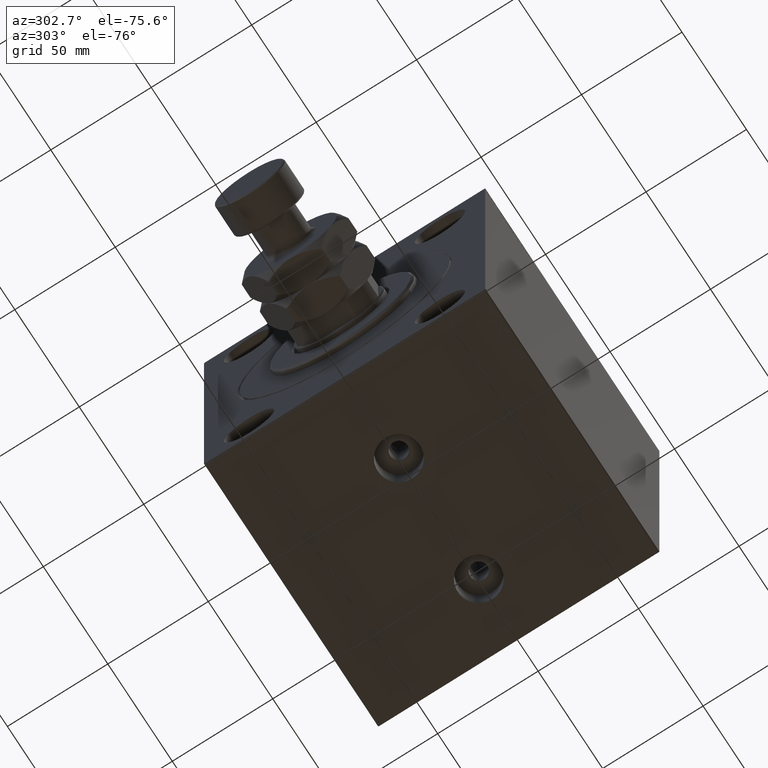
[diagram: clean part render]
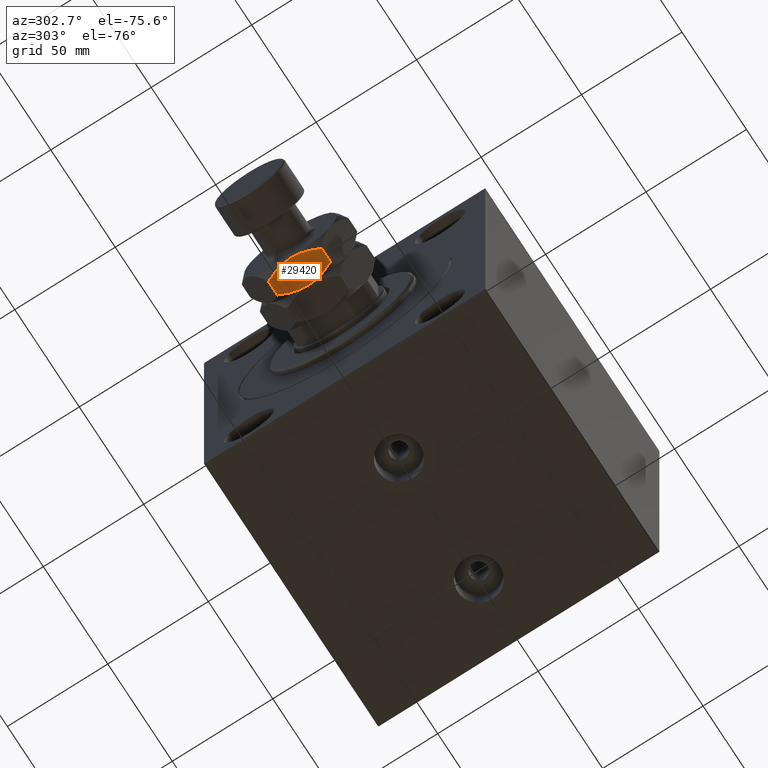
[diagram: same view with one face highlighted and labeled with its STEP entity id]
A machine part, auxiliary view. The second image highlights one B-rep face of the part: STEP entity #29420.
In plain terms, the highlighted planar face has unit normal (0, 0, 1).
Its self-contained STEP definition (entity closure, byte-faithful):
#151 = VECTOR ( 'NONE', #32660, 1000.000000000000000 ) ;
#848 = ORIENTED_EDGE ( 'NONE', *, *, #9096, .F. ) ;
#1207 = CARTESIAN_POINT ( 'NONE',  ( -23.00000000000000355, -4.604003285773385024, 14.35917286671931059 ) ) ;
#1432 = CARTESIAN_POINT ( 'NONE',  ( -23.00000000000000355, -9.038140464506014382, 15.70670540628181477 ) ) ;
#2757 = CARTESIAN_POINT ( 'NONE',  ( -23.00000000000000711, 2.332866569036887938, 27.99999999999999645 ) ) ;
#2870 = EDGE_LOOP ( 'NONE', ( #5115, #37182, #44511, #3893, #21687, #848 ) ) ;
#3893 = ORIENTED_EDGE ( 'NONE', *, *, #23565, .F. ) ;
#5115 = ORIENTED_EDGE ( 'NONE', *, *, #20867, .F. ) ;
#5201 = CARTESIAN_POINT ( 'NONE',  ( -22.99999999999999645, 0.000000000000000000, 28.00000000000000000 ) ) ;
#6618 = CARTESIAN_POINT ( 'NONE',  ( -23.00000000000000711, 12.24912306375521531, 17.04314581891969382 ) ) ;
#7353 = FACE_OUTER_BOUND ( 'NONE', #2870, .T. ) ;
#7836 = CARTESIAN_POINT ( 'NONE',  ( -23.00000000000000000, -13.27905619136138959, 17.55811238272277564 ) ) ;
#8456 = PLANE ( 'NONE',  #46418 ) ;
#8770 = CARTESIAN_POINT ( 'NONE',  ( -22.99999999999999645, 3.004629197474316090E-15, 14.00000000000000000 ) ) ;
#8976 = CARTESIAN_POINT ( 'NONE',  ( -23.00000000000000000, -5.732845801352522308, 27.32003707801577619 ) ) ;
#9096 = EDGE_CURVE ( 'NONE', #19649, #32999, #35138, .T. ) ;
#9398 = CARTESIAN_POINT ( 'NONE',  ( -23.00000000000000000, 13.27905619136138959, 24.44188761727722792 ) ) ;
#9851 = CARTESIAN_POINT ( 'NONE',  ( -23.00000000000000000, 12.24963129209447565, 24.95660006691067778 ) ) ;
#13052 = LINE ( 'NONE', #42684, #28712 ) ;
#13703 = CARTESIAN_POINT ( 'NONE',  ( -23.00000000000000355, 7.945847288453419921, 15.31073039083534226 ) ) ;
#14183 = CARTESIAN_POINT ( 'NONE',  ( -23.00000000000000355, 11.19584287463890959, 16.56112058300224632 ) ) ;
#15061 = VERTEX_POINT ( 'NONE', #35371 ) ;
#15361 = EDGE_CURVE ( 'NONE', #36362, #32999, #13052, .T. ) ;
#15640 = CARTESIAN_POINT ( 'NONE',  ( -23.00000000000000355, -2.332866569036886606, 14.00000000000000355 ) ) ;
#17171 = CARTESIAN_POINT ( 'NONE',  ( -23.00000000000000711, 4.604003285773378806, 27.64082713328069119 ) ) ;
#17253 = CARTESIAN_POINT ( 'NONE',  ( -22.99999999999999645, 3.004629197474316090E-15, 14.00000000000000000 ) ) ;
#17403 = CARTESIAN_POINT ( 'NONE',  ( -22.99999999999999645, 7.384104261058114460, 26.84961951312581618 ) ) ;
#17719 = CARTESIAN_POINT ( 'NONE',  ( -23.00000000000000000, -13.27905619136138959, 28.00000000000000000 ) ) ;
#17735 = CARTESIAN_POINT ( 'NONE',  ( -23.00000000000001066, 0.5819124658698887620, 14.00000000000000711 ) ) ;
#18926 = CARTESIAN_POINT ( 'NONE',  ( -23.00000000000000000, -2.901718448039539044, 27.82452852895291429 ) ) ;
#19643 = CARTESIAN_POINT ( 'NONE',  ( -23.00000000000000711, -7.384104261058126895, 15.15038048687418559 ) ) ;
#19649 = VERTEX_POINT ( 'NONE', #42978 ) ;
#20273 = CARTESIAN_POINT ( 'NONE',  ( -22.99999999999999645, 0.000000000000000000, 28.00000000000000000 ) ) ;
#20611 = DIRECTION ( 'NONE',  ( -0.000000000000000000, -0.000000000000000000, -1.000000000000000000 ) ) ;
#20867 = EDGE_CURVE ( 'NONE', #26096, #19649, #33182, .T. ) ;
#21038 = CARTESIAN_POINT ( 'NONE',  ( -23.00000000000000000, 13.27905619136138959, 17.55811238272277564 ) ) ;
#21089 = EDGE_CURVE ( 'NONE', #33650, #26096, #35744, .T. ) ;
#21687 = ORIENTED_EDGE ( 'NONE', *, *, #15361, .T. ) ;
#22330 = EDGE_CURVE ( 'NONE', #15061, #33650, #22336, .T. ) ;
#22336 = B_SPLINE_CURVE_WITH_KNOTS ( 'NONE', 3,
 ( #5201, #22956, #40543, #26506, #18926, #45030, #8976, #22711, #29844, #33870, #37435, #26272 ),
 .UNSPECIFIED., .F., .F.,
 ( 4, 2, 2, 2, 2, 4 ),
 ( 0.04777139595992686838, 0.04949914554651193427, 0.05122689513309699322, 0.05468239430626712499, 0.05813789347943724983, 0.06159339265260738161 ),
 .UNSPECIFIED. ) ;
#22711 = CARTESIAN_POINT ( 'NONE',  ( -22.99999999999999645, -7.945847288453418145, 26.68926960916466129 ) ) ;
#22729 = CARTESIAN_POINT ( 'NONE',  ( -23.00000000000001066, -7.937214062685167271, 15.32555602763360092 ) ) ;
#22894 = DIRECTION ( 'NONE',  ( 1.000000000000000000, 0.000000000000000000, -0.000000000000000000 ) ) ;
#22956 = CARTESIAN_POINT ( 'NONE',  ( -23.00000000000000711, -0.5819124658698872077, 28.00000000000000000 ) ) ;
#23565 = EDGE_CURVE ( 'NONE', #36362, #15061, #44367, .T. ) ;
#24053 = CARTESIAN_POINT ( 'NONE',  ( -22.99999999999999289, 9.585014738077486385, 26.08755915768734468 ) ) ;
#24289 = CARTESIAN_POINT ( 'NONE',  ( -22.99999999999999645, 11.20010744839417427, 25.43691701641144221 ) ) ;
#24609 = CARTESIAN_POINT ( 'NONE',  ( -23.00000000000000355, 9.037287856520078932, 15.69203433471579778 ) ) ;
#24833 = CARTESIAN_POINT ( 'NONE',  ( -23.00000000000000000, 13.27905619136138959, 24.44188761727722792 ) ) ;
#26096 = VERTEX_POINT ( 'NONE', #36767 ) ;
#26272 = CARTESIAN_POINT ( 'NONE',  ( -23.00000000000000000, -13.27905619136138959, 24.44188761727722436 ) ) ;
#26506 = CARTESIAN_POINT ( 'NONE',  ( -22.99999999999999289, -2.327345773459494005, 27.88976552227909878 ) ) ;
#28712 = VECTOR ( 'NONE', #20611, 1000.000000000000000 ) ;
#29420 = ADVANCED_FACE ( 'NONE', ( #7353 ), #8456, .F. ) ;
#29844 = CARTESIAN_POINT ( 'NONE',  ( -23.00000000000000355, -9.037287856520077156, 26.30796566528420399 ) ) ;
#30244 = CARTESIAN_POINT ( 'NONE',  ( -23.00000000000000000, 13.27905619136138959, 28.00000000000000000 ) ) ;
#30321 = CARTESIAN_POINT ( 'NONE',  ( -23.00000000000000000, -11.20010744839417782, 16.56308298358856135 ) ) ;
#31724 = CARTESIAN_POINT ( 'NONE',  ( -23.00000000000000000, 1.168850493887471087, 14.02243711562833184 ) ) ;
#32200 = CARTESIAN_POINT ( 'NONE',  ( -23.00000000000000355, 4.611258391204995810, 14.43061535182026667 ) ) ;
#32660 = DIRECTION ( 'NONE',  ( -0.000000000000000000, -0.000000000000000000, -1.000000000000000000 ) ) ;
#32999 = VERTEX_POINT ( 'NONE', #34799 ) ;
#33182 = B_SPLINE_CURVE_WITH_KNOTS ( 'NONE', 3,
 ( #7836, #33890, #30321, #33659, #1432, #22729, #19643, #1207, #15640, #8770 ),
 .UNSPECIFIED., .F., .F.,
 ( 4, 2, 2, 2, 4 ),
 ( 0.03391842154671734916, 0.03738166515001972723, 0.03911328695167091973, 0.04084490875332210530, 0.04777139595992687532 ),
 .UNSPECIFIED. ) ;
#33650 = VERTEX_POINT ( 'NONE', #42872 ) ;
#33659 = CARTESIAN_POINT ( 'NONE',  ( -22.99999999999999289, -9.585014738077491714, 15.91244084231266420 ) ) ;
#33870 = CARTESIAN_POINT ( 'NONE',  ( -23.00000000000000355, -11.19584287463890782, 25.43887941699775368 ) ) ;
#33890 = CARTESIAN_POINT ( 'NONE',  ( -22.99999999999999289, -12.24963129209448276, 17.04339993308932222 ) ) ;
#34799 = CARTESIAN_POINT ( 'NONE',  ( -23.00000000000000000, 13.27905619136138959, 17.55811238272277564 ) ) ;
#35138 = B_SPLINE_CURVE_WITH_KNOTS ( 'NONE', 3,
 ( #17253, #17735, #31724, #46436, #46197, #32200, #46676, #13703, #24609, #14183, #6618, #21038 ),
 .UNSPECIFIED., .F., .F.,
 ( 4, 2, 2, 2, 2, 4 ),
 ( 0.04777139595992687532, 0.04949914554651194121, 0.05122689513309700016, 0.05468239430626712499, 0.05813789347943724983, 0.06159339265260737467 ),
 .UNSPECIFIED. ) ;
#35371 = CARTESIAN_POINT ( 'NONE',  ( -22.99999999999999645, 0.000000000000000000, 28.00000000000000000 ) ) ;
#35744 = LINE ( 'NONE', #17719, #151 ) ;
#36362 = VERTEX_POINT ( 'NONE', #24833 ) ;
#36767 = CARTESIAN_POINT ( 'NONE',  ( -23.00000000000000000, -13.27905619136138959, 17.55811238272277564 ) ) ;
#37182 = ORIENTED_EDGE ( 'NONE', *, *, #21089, .F. ) ;
#37375 = DIRECTION ( 'NONE',  ( -0.000000000000000000, 0.000000000000000000, -1.000000000000000000 ) ) ;
#37435 = CARTESIAN_POINT ( 'NONE',  ( -23.00000000000000711, -12.24912306375522242, 24.95685418108031328 ) ) ;
#40543 = CARTESIAN_POINT ( 'NONE',  ( -23.00000000000000000, -1.168850493887465758, 27.97756288437166461 ) ) ;
#42115 = CARTESIAN_POINT ( 'NONE',  ( -23.00000000000000000, 7.937214062685161942, 26.67444397236640086 ) ) ;
#42684 = CARTESIAN_POINT ( 'NONE',  ( -23.00000000000000000, 13.27905619136138959, 28.00000000000000000 ) ) ;
#42872 = CARTESIAN_POINT ( 'NONE',  ( -23.00000000000000000, -13.27905619136138959, 24.44188761727722436 ) ) ;
#42978 = CARTESIAN_POINT ( 'NONE',  ( -22.99999999999999645, 3.004629197474316090E-15, 14.00000000000000000 ) ) ;
#44367 = B_SPLINE_CURVE_WITH_KNOTS ( 'NONE', 3,
 ( #9398, #9851, #24289, #24053, #45207, #42115, #17403, #17171, #2757, #20273 ),
 .UNSPECIFIED., .F., .F.,
 ( 4, 2, 2, 2, 4 ),
 ( 0.03391842154671734916, 0.03738166515001972723, 0.03911328695167091973, 0.04084490875332210530, 0.04777139595992686838 ),
 .UNSPECIFIED. ) ;
#44511 = ORIENTED_EDGE ( 'NONE', *, *, #22330, .F. ) ;
#45030 = CARTESIAN_POINT ( 'NONE',  ( -23.00000000000000355, -4.611258391204997586, 27.56938464817973511 ) ) ;
#45207 = CARTESIAN_POINT ( 'NONE',  ( -23.00000000000000000, 9.038140464506012606, 26.29329459371818345 ) ) ;
#46197 = CARTESIAN_POINT ( 'NONE',  ( -23.00000000000000355, 2.901718448039537712, 14.17547147104708571 ) ) ;
#46418 = AXIS2_PLACEMENT_3D ( 'NONE', #30244, #22894, #37375 ) ;
#46436 = CARTESIAN_POINT ( 'NONE',  ( -23.00000000000000000, 2.327345773459499334, 14.11023447772089945 ) ) ;
#46676 = CARTESIAN_POINT ( 'NONE',  ( -23.00000000000000711, 5.732845801352522308, 14.67996292198422736 ) ) ;